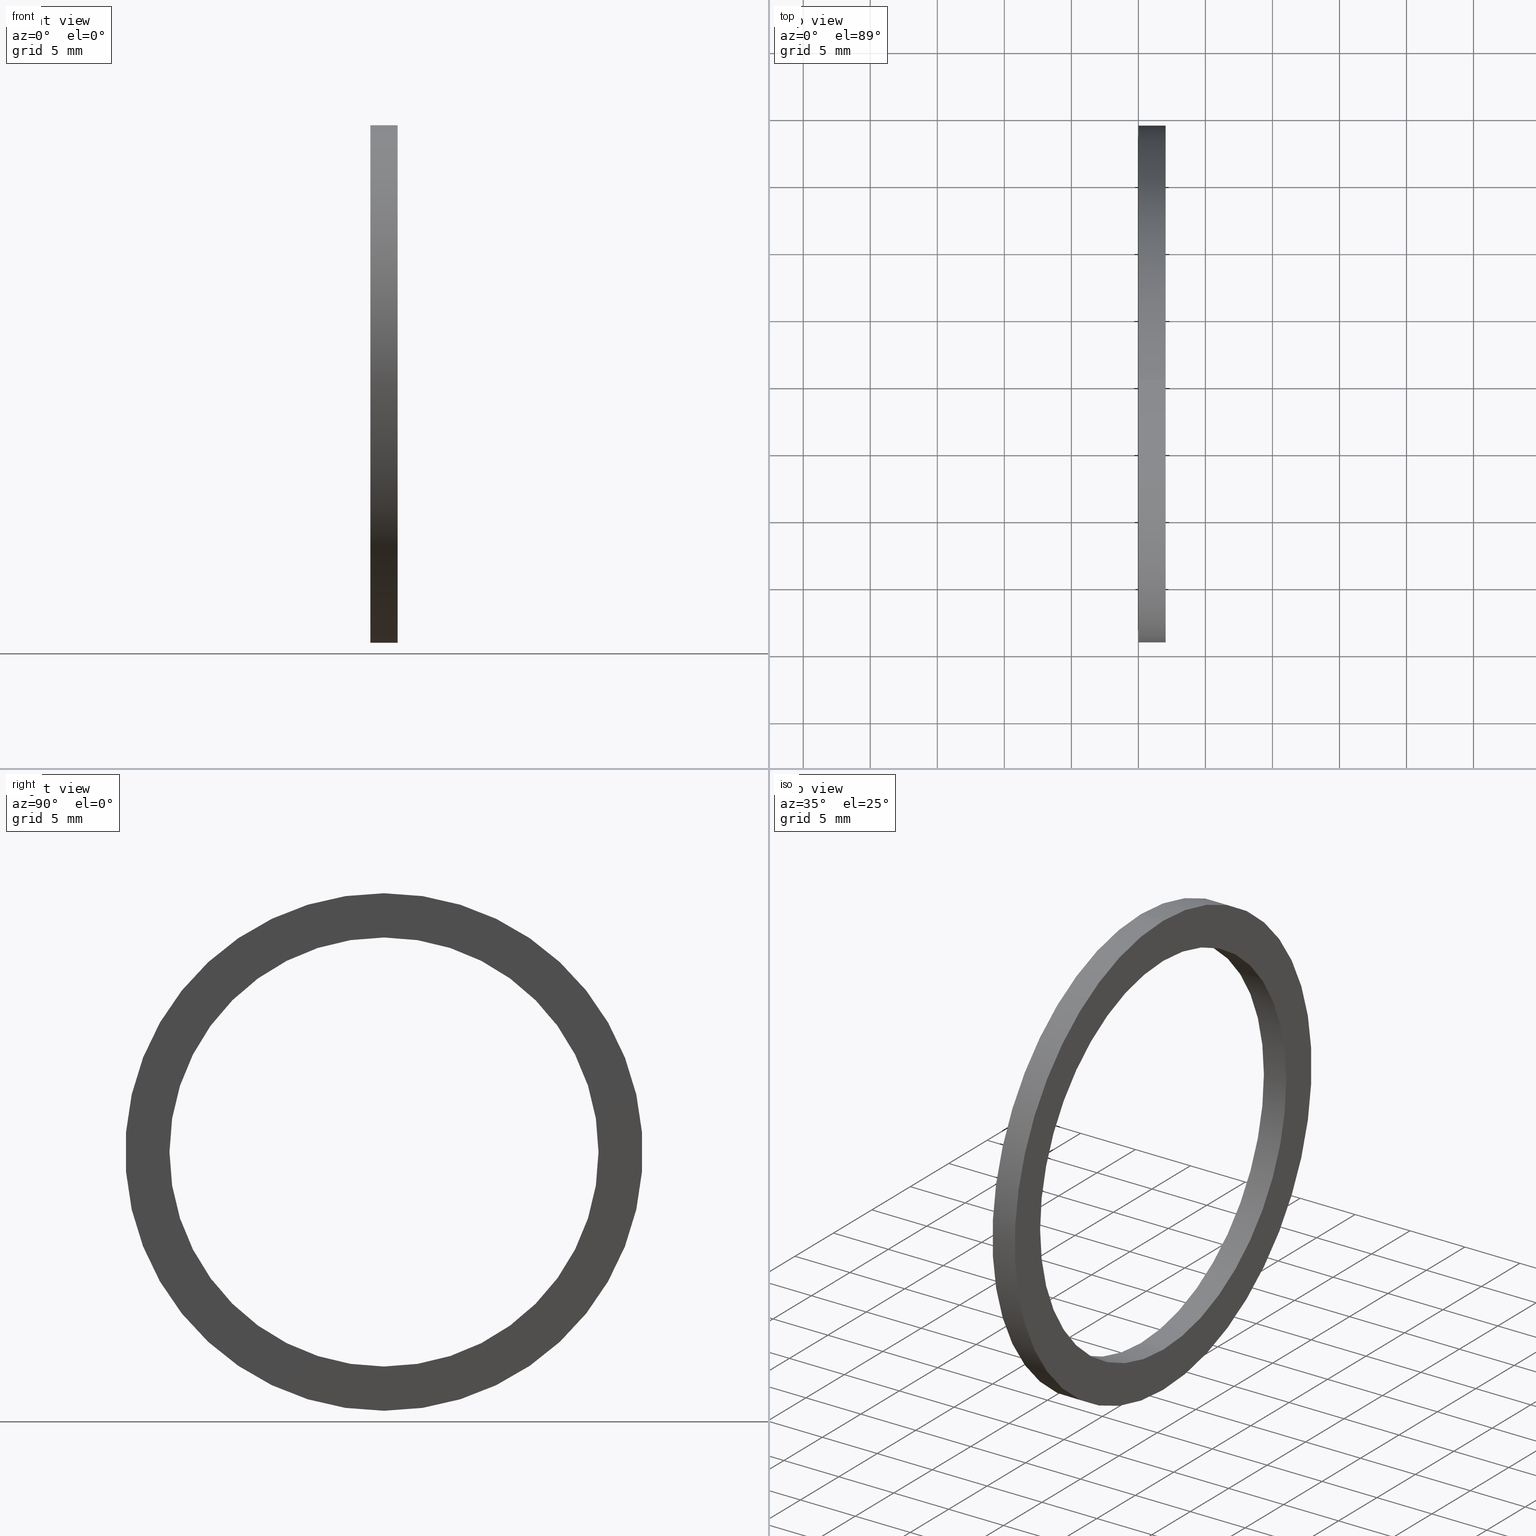
[diagram: canonical four-view strip — front | top / right | iso, engineering-drawing reading convention]
A machine part, canonical four-view strip (front | top / right | iso — engineering-drawing reading convention). The complete STEP part file that produces these views, byte-faithful:
ISO-10303-21;
HEADER;
FILE_DESCRIPTION (( 'STEP AP203' ),
    '1' );
FILE_NAME ('SM-32-VT.STEP',
    '2008-06-25T05:57:08',
    ( 'BSI05' ),
    ( 'BAYSTATE' ),
    'SwSTEP 2.0',
    'SolidWorks 2007',
    '' );
FILE_SCHEMA (( 'CONFIG_CONTROL_DESIGN' ));
ENDSEC;

DATA;
#1 = ORIENTED_EDGE ( 'NONE', *, *, #37, .T. ) ;
#2 = ORIENTED_EDGE ( 'NONE', *, *, #59, .T. ) ;
#3 = ORIENTED_EDGE ( 'NONE', *, *, #22, .F. ) ;
#4 = ORIENTED_EDGE ( 'NONE', *, *, #45, .F. ) ;
#5 = CIRCLE ( 'NONE', #6, 0.7599999999999999000 ) ;
#6 = AXIS2_PLACEMENT_3D ( 'NONE', #7, #8, #9 ) ;
#7 = CARTESIAN_POINT ( 'NONE',  ( 0.07999999999999996000, 0.0000000000000000000, 0.0000000000000000000 ) ) ;
#8 = DIRECTION ( 'NONE',  ( -1.000000000000000000, 0.0000000000000000000, 0.0000000000000000000 ) ) ;
#9 = DIRECTION ( 'NONE',  ( 0.0000000000000000000, 0.0000000000000000000, 1.000000000000000000 ) ) ;
#10 = ORIENTED_EDGE ( 'NONE', *, *, #14, .F. ) ;
#11 = VERTEX_POINT ( 'NONE', #121 ) ;
#12 = EDGE_CURVE ( 'NONE', #11, #43, #107, .T. ) ;
#13 = ADVANCED_FACE ( 'NONE', ( #97, #80 ), #69, .T. ) ;
#14 = EDGE_CURVE ( 'NONE', #32, #11, #84, .T. ) ;
#15 = ORIENTED_EDGE ( 'NONE', *, *, #12, .F. ) ;
#16 = CC_DESIGN_SECURITY_CLASSIFICATION ( #200, ( #240 ) ) ;
#17 = CLOSED_SHELL ( 'NONE', ( #29, #30, #13, #58, #51, #19 ) ) ;
#18 = ORIENTED_EDGE ( 'NONE', *, *, #56, .F. ) ;
#19 = ADVANCED_FACE ( 'NONE', ( #85 ), #70, .F. ) ;
#20 = EDGE_LOOP ( 'NONE', ( #4, #3, #1, #2 ) ) ;
#21 = EDGE_LOOP ( 'NONE', ( #53, #18 ) ) ;
#22 = EDGE_CURVE ( 'NONE', #28, #27, #96, .T. ) ;
#23 = ORIENTED_EDGE ( 'NONE', *, *, #38, .T. ) ;
#24 = ORIENTED_EDGE ( 'NONE', *, *, #25, .T. ) ;
#25 = EDGE_CURVE ( 'NONE', #39, #26, #129, .T. ) ;
#26 = VERTEX_POINT ( 'NONE', #124 ) ;
#27 = VERTEX_POINT ( 'NONE', #123 ) ;
#28 = VERTEX_POINT ( 'NONE', #122 ) ;
#29 = ADVANCED_FACE ( 'NONE', ( #119 ), #118, .F. ) ;
#30 = ADVANCED_FACE ( 'NONE', ( #117 ), #90, .T. ) ;
#31 = EDGE_LOOP ( 'NONE', ( #40, #33, #15, #10 ) ) ;
#32 = VERTEX_POINT ( 'NONE', #89 ) ;
#33 = ORIENTED_EDGE ( 'NONE', *, *, #34, .T. ) ;
#34 = EDGE_CURVE ( 'NONE', #42, #43, #112, .T. ) ;
#35 = ORIENTED_EDGE ( 'NONE', *, *, #38, .F. ) ;
#36 = ORIENTED_EDGE ( 'NONE', *, *, #37, .F. ) ;
#37 = EDGE_CURVE ( 'NONE', #28, #26, #108, .T. ) ;
#38 = EDGE_CURVE ( 'NONE', #27, #28, #102, .T. ) ;
#39 = VERTEX_POINT ( 'NONE', #103 ) ;
#40 = ORIENTED_EDGE ( 'NONE', *, *, #41, .T. ) ;
#41 = EDGE_CURVE ( 'NONE', #32, #42, #148, .T. ) ;
#42 = VERTEX_POINT ( 'NONE', #143 ) ;
#43 = VERTEX_POINT ( 'NONE', #142 ) ;
#44 = ORIENTED_EDGE ( 'NONE', *, *, #45, .T. ) ;
#45 = EDGE_CURVE ( 'NONE', #27, #39, #141, .T. ) ;
#46 = MANIFOLD_SOLID_BREP ( 'NONE', #17 ) ;
#47 = EDGE_LOOP ( 'NONE', ( #35, #44, #24, #36 ) ) ;
#48 = ORIENTED_EDGE ( 'NONE', *, *, #22, .T. ) ;
#49 = ORIENTED_EDGE ( 'NONE', *, *, #63, .F. ) ;
#50 = EDGE_LOOP ( 'NONE', ( #48, #23 ) ) ;
#51 = ADVANCED_FACE ( 'NONE', ( #137, #136 ), #135, .T. ) ;
#52 = ORIENTED_EDGE ( 'NONE', *, *, #14, .T. ) ;
#53 = ORIENTED_EDGE ( 'NONE', *, *, #41, .F. ) ;
#54 = ORIENTED_EDGE ( 'NONE', *, *, #56, .T. ) ;
#55 = ORIENTED_EDGE ( 'NONE', *, *, #34, .F. ) ;
#56 = EDGE_CURVE ( 'NONE', #42, #32, #5, .T. ) ;
#57 = ORIENTED_EDGE ( 'NONE', *, *, #25, .F. ) ;
#58 = ADVANCED_FACE ( 'NONE', ( #207 ), #151, .T. ) ;
#59 = EDGE_CURVE ( 'NONE', #26, #39, #220, .T. ) ;
#60 = ORIENTED_EDGE ( 'NONE', *, *, #59, .F. ) ;
#61 = EDGE_LOOP ( 'NONE', ( #55, #54, #52, #49 ) ) ;
#62 = ORIENTED_EDGE ( 'NONE', *, *, #63, .T. ) ;
#63 = EDGE_CURVE ( 'NONE', #43, #11, #154, .T. ) ;
#64 = EDGE_LOOP ( 'NONE', ( #60, #57 ) ) ;
#65 = ORIENTED_EDGE ( 'NONE', *, *, #12, .T. ) ;
#66 = EDGE_LOOP ( 'NONE', ( #65, #62 ) ) ;
#67 = DIRECTION ( 'NONE',  ( -1.000000000000000000, 0.0000000000000000000, 0.0000000000000000000 ) ) ;
#68 = AXIS2_PLACEMENT_3D ( 'NONE', #74, #73, #72 ) ;
#69 = PLANE ( 'NONE',  #68 ) ;
#70 = CYLINDRICAL_SURFACE ( 'NONE', #71, 0.6300000000000000000 ) ;
#71 = AXIS2_PLACEMENT_3D ( 'NONE', #77, #76, #75 ) ;
#72 = DIRECTION ( 'NONE',  ( 0.0000000000000000000, 0.0000000000000000000, 1.000000000000000000 ) ) ;
#73 = DIRECTION ( 'NONE',  ( -1.000000000000000000, 0.0000000000000000000, 0.0000000000000000000 ) ) ;
#74 = CARTESIAN_POINT ( 'NONE',  ( 2.020600483806921900E-017, -0.6300000000000000000, 0.0000000000000000000 ) ) ;
#75 = DIRECTION ( 'NONE',  ( 0.0000000000000000000, 0.0000000000000000000, 1.000000000000000000 ) ) ;
#76 = DIRECTION ( 'NONE',  ( -1.000000000000000000, 0.0000000000000000000, 0.0000000000000000000 ) ) ;
#77 = CARTESIAN_POINT ( 'NONE',  ( -1.721125226614714300, 0.0000000000000000000, 0.0000000000000000000 ) ) ;
#78 = CARTESIAN_POINT ( 'NONE',  ( 0.0000000000000000000, 0.0000000000000000000, 0.0000000000000000000 ) ) ;
#79 = DIRECTION ( 'NONE',  ( 0.0000000000000000000, 0.0000000000000000000, 1.000000000000000000 ) ) ;
#80 = FACE_BOUND ( 'NONE', #64, .T. ) ;
#81 = DIRECTION ( 'NONE',  ( -1.000000000000000000, 0.0000000000000000000, 0.0000000000000000000 ) ) ;
#82 = VECTOR ( 'NONE', #81, 39.37007874015748100 ) ;
#83 = CARTESIAN_POINT ( 'NONE',  ( -1.721125226614714300, 0.0000000000000000000, 0.7599999999999999000 ) ) ;
#84 = LINE ( 'NONE', #83, #82 ) ;
#85 = FACE_OUTER_BOUND ( 'NONE', #20, .T. ) ;
#86 = DIRECTION ( 'NONE',  ( -1.000000000000000000, 0.0000000000000000000, 0.0000000000000000000 ) ) ;
#87 = CARTESIAN_POINT ( 'NONE',  ( -1.721125226614714300, 0.0000000000000000000, 0.0000000000000000000 ) ) ;
#88 = AXIS2_PLACEMENT_3D ( 'NONE', #87, #86, #113 ) ;
#89 = CARTESIAN_POINT ( 'NONE',  ( 0.07999999999999996000, 0.0000000000000000000, 0.7599999999999999000 ) ) ;
#90 = CYLINDRICAL_SURFACE ( 'NONE', #88, 0.7599999999999999000 ) ;
#91 = DIRECTION ( 'NONE',  ( 0.0000000000000000000, 0.0000000000000000000, 1.000000000000000000 ) ) ;
#92 = DIRECTION ( 'NONE',  ( 0.0000000000000000000, 0.0000000000000000000, 1.000000000000000000 ) ) ;
#93 = DIRECTION ( 'NONE',  ( -1.000000000000000000, 0.0000000000000000000, 0.0000000000000000000 ) ) ;
#94 = CARTESIAN_POINT ( 'NONE',  ( 0.07999999999999996000, 0.0000000000000000000, 0.0000000000000000000 ) ) ;
#95 = AXIS2_PLACEMENT_3D ( 'NONE', #94, #93, #92 ) ;
#96 = CIRCLE ( 'NONE', #95, 0.6300000000000000000 ) ;
#97 = FACE_OUTER_BOUND ( 'NONE', #66, .T. ) ;
#98 = DIRECTION ( 'NONE',  ( 0.0000000000000000000, 0.0000000000000000000, 1.000000000000000000 ) ) ;
#99 = DIRECTION ( 'NONE',  ( -1.000000000000000000, 0.0000000000000000000, 0.0000000000000000000 ) ) ;
#100 = CARTESIAN_POINT ( 'NONE',  ( 0.07999999999999996000, 0.0000000000000000000, 0.0000000000000000000 ) ) ;
#101 = AXIS2_PLACEMENT_3D ( 'NONE', #100, #99, #98 ) ;
#102 = CIRCLE ( 'NONE', #101, 0.6300000000000000000 ) ;
#103 = CARTESIAN_POINT ( 'NONE',  ( 0.0000000000000000000, 7.715274834628325400E-017, -0.6300000000000000000 ) ) ;
#104 = DIRECTION ( 'NONE',  ( -1.000000000000000000, 0.0000000000000000000, 0.0000000000000000000 ) ) ;
#105 = VECTOR ( 'NONE', #104, 39.37007874015748100 ) ;
#106 = CARTESIAN_POINT ( 'NONE',  ( -1.721125226614714300, 0.0000000000000000000, 0.6300000000000000000 ) ) ;
#107 = CIRCLE ( 'NONE', #120, 0.7599999999999999000 ) ;
#108 = LINE ( 'NONE', #106, #105 ) ;
#109 = DIRECTION ( 'NONE',  ( -1.000000000000000000, 0.0000000000000000000, 0.0000000000000000000 ) ) ;
#110 = VECTOR ( 'NONE', #109, 39.37007874015748100 ) ;
#111 = CARTESIAN_POINT ( 'NONE',  ( -1.721125226614714300, 9.307315673519883500E-017, -0.7599999999999999000 ) ) ;
#112 = LINE ( 'NONE', #111, #110 ) ;
#113 = DIRECTION ( 'NONE',  ( 0.0000000000000000000, 0.0000000000000000000, 1.000000000000000000 ) ) ;
#114 = DIRECTION ( 'NONE',  ( -1.000000000000000000, 0.0000000000000000000, 0.0000000000000000000 ) ) ;
#115 = CARTESIAN_POINT ( 'NONE',  ( -1.721125226614714300, 0.0000000000000000000, 0.0000000000000000000 ) ) ;
#116 = AXIS2_PLACEMENT_3D ( 'NONE', #115, #114, #91 ) ;
#117 = FACE_OUTER_BOUND ( 'NONE', #31, .T. ) ;
#118 = CYLINDRICAL_SURFACE ( 'NONE', #116, 0.6300000000000000000 ) ;
#119 = FACE_OUTER_BOUND ( 'NONE', #47, .T. ) ;
#120 = AXIS2_PLACEMENT_3D ( 'NONE', #78, #67, #79 ) ;
#121 = CARTESIAN_POINT ( 'NONE',  ( 0.0000000000000000000, 0.0000000000000000000, 0.7599999999999999000 ) ) ;
#122 = CARTESIAN_POINT ( 'NONE',  ( 0.07999999999999996000, 0.0000000000000000000, 0.6300000000000000000 ) ) ;
#123 = CARTESIAN_POINT ( 'NONE',  ( 0.07999999999999996000, 7.715274834628325400E-017, -0.6300000000000000000 ) ) ;
#124 = CARTESIAN_POINT ( 'NONE',  ( 0.0000000000000000000, 0.0000000000000000000, 0.6300000000000000000 ) ) ;
#125 = DIRECTION ( 'NONE',  ( 0.0000000000000000000, 0.0000000000000000000, 1.000000000000000000 ) ) ;
#126 = DIRECTION ( 'NONE',  ( -1.000000000000000000, 0.0000000000000000000, 0.0000000000000000000 ) ) ;
#127 = CARTESIAN_POINT ( 'NONE',  ( 0.0000000000000000000, 0.0000000000000000000, 0.0000000000000000000 ) ) ;
#128 = AXIS2_PLACEMENT_3D ( 'NONE', #127, #126, #125 ) ;
#129 = CIRCLE ( 'NONE', #128, 0.6300000000000000000 ) ;
#130 = PRODUCT_RELATED_PRODUCT_CATEGORY ( 'detail', '', ( #247 ) ) ;
#131 = DIRECTION ( 'NONE',  ( 0.0000000000000000000, 0.0000000000000000000, -1.000000000000000000 ) ) ;
#132 = DIRECTION ( 'NONE',  ( 1.000000000000000000, 0.0000000000000000000, 0.0000000000000000000 ) ) ;
#133 = CARTESIAN_POINT ( 'NONE',  ( 0.08000000000000002900, -0.6300000000000000000, 0.0000000000000000000 ) ) ;
#134 = AXIS2_PLACEMENT_3D ( 'NONE', #133, #132, #131 ) ;
#135 = PLANE ( 'NONE',  #134 ) ;
#136 = FACE_OUTER_BOUND ( 'NONE', #21, .T. ) ;
#137 = FACE_BOUND ( 'NONE', #50, .T. ) ;
#138 = DIRECTION ( 'NONE',  ( -1.000000000000000000, 0.0000000000000000000, 0.0000000000000000000 ) ) ;
#139 = VECTOR ( 'NONE', #138, 39.37007874015748100 ) ;
#140 = CARTESIAN_POINT ( 'NONE',  ( -1.721125226614714300, 7.715274834628325400E-017, -0.6300000000000000000 ) ) ;
#141 = LINE ( 'NONE', #140, #139 ) ;
#142 = CARTESIAN_POINT ( 'NONE',  ( 0.0000000000000000000, 9.307315673519883500E-017, -0.7599999999999999000 ) ) ;
#143 = CARTESIAN_POINT ( 'NONE',  ( 0.07999999999999996000, 9.307315673519883500E-017, -0.7599999999999999000 ) ) ;
#144 = DIRECTION ( 'NONE',  ( 0.0000000000000000000, 0.0000000000000000000, 1.000000000000000000 ) ) ;
#145 = DIRECTION ( 'NONE',  ( -1.000000000000000000, 0.0000000000000000000, 0.0000000000000000000 ) ) ;
#146 = CARTESIAN_POINT ( 'NONE',  ( 0.07999999999999996000, 0.0000000000000000000, 0.0000000000000000000 ) ) ;
#147 = AXIS2_PLACEMENT_3D ( 'NONE', #146, #145, #144 ) ;
#148 = CIRCLE ( 'NONE', #147, 0.7599999999999999000 ) ;
#149 = CARTESIAN_POINT ( 'NONE',  ( 0.0000000000000000000, 0.0000000000000000000, 0.0000000000000000000 ) ) ;
#150 = ADVANCED_BREP_SHAPE_REPRESENTATION ( 'SM-32-VT', ( #46, #178 ), #179 ) ;
#151 = CYLINDRICAL_SURFACE ( 'NONE', #206, 0.7599999999999999000 ) ;
#152 =( CONVERSION_BASED_UNIT ( 'INCH', #209 ) LENGTH_UNIT ( ) NAMED_UNIT ( #241 ) );
#153 = AXIS2_PLACEMENT_3D ( 'NONE', #205, #204, #203 ) ;
#154 = CIRCLE ( 'NONE', #153, 0.7599999999999999000 ) ;
#155 = APPROVAL_DATE_TIME ( #156, #162 ) ;
#156 = DATE_AND_TIME ( #157, #158 ) ;
#157 = CALENDAR_DATE ( 2008, 25, 6 ) ;
#158 = LOCAL_TIME ( 11, 27, 8.000000000000000000, #159 ) ;
#159 = COORDINATED_UNIVERSAL_TIME_OFFSET ( 5, 30, .AHEAD. ) ;
#160 = APPROVAL_PERSON_ORGANIZATION ( #164, #162, #161 ) ;
#161 = APPROVAL_ROLE ( '' ) ;
#162 = APPROVAL ( #163, 'UNSPECIFIED' ) ;
#163 = APPROVAL_STATUS ( 'not_yet_approved' ) ;
#164 = PERSON_AND_ORGANIZATION ( #246, #174 ) ;
#165 = PRODUCT_DEFINITION ( 'UNKNOWN', '', #240, #166 ) ;
#166 = DESIGN_CONTEXT ( 'detailed design', #168, 'design' ) ;
#167 = APPLICATION_PROTOCOL_DEFINITION ( 'international standard', 'config_control_design', 1994, #168 ) ;
#168 = APPLICATION_CONTEXT ( 'configuration controlled 3d designs of mechanical parts and assemblies' ) ;
#169 = CC_DESIGN_PERSON_AND_ORGANIZATION_ASSIGNMENT ( #173, #172, ( #247 ) ) ;
#170 =( NAMED_UNIT ( * ) PLANE_ANGLE_UNIT ( ) SI_UNIT ( $, .RADIAN. ) );
#171 = DIRECTION ( 'NONE',  ( 0.0000000000000000000, 0.0000000000000000000, 1.000000000000000000 ) ) ;
#172 = PERSON_AND_ORGANIZATION_ROLE ( 'design_owner' ) ;
#173 = PERSON_AND_ORGANIZATION ( #246, #174 ) ;
#174 = ORGANIZATION ( 'UNSPECIFIED', 'UNSPECIFIED', '' ) ;
#175 = DIRECTION ( 'NONE',  ( -1.000000000000000000, 0.0000000000000000000, 0.0000000000000000000 ) ) ;
#176 = CARTESIAN_POINT ( 'NONE',  ( 0.0000000000000000000, 0.0000000000000000000, 0.0000000000000000000 ) ) ;
#177 = DIRECTION ( 'NONE',  ( -1.000000000000000000, 0.0000000000000000000, 0.0000000000000000000 ) ) ;
#178 = AXIS2_PLACEMENT_3D ( 'NONE', #149, #245, #244 ) ;
#179 =( GEOMETRIC_REPRESENTATION_CONTEXT ( 3 ) GLOBAL_UNCERTAINTY_ASSIGNED_CONTEXT ( ( #221 ) ) GLOBAL_UNIT_ASSIGNED_CONTEXT ( ( #152, #170, #222 ) ) REPRESENTATION_CONTEXT ( 'NONE', 'WORKASPACE' ) );
#180 = CC_DESIGN_APPROVAL ( #188, ( #200 ) ) ;
#181 = APPROVAL_DATE_TIME ( #182, #188 ) ;
#182 = DATE_AND_TIME ( #183, #184 ) ;
#183 = CALENDAR_DATE ( 2008, 25, 6 ) ;
#184 = LOCAL_TIME ( 11, 27, 8.000000000000000000, #185 ) ;
#185 = COORDINATED_UNIVERSAL_TIME_OFFSET ( 5, 30, .AHEAD. ) ;
#186 = APPROVAL_PERSON_ORGANIZATION ( #190, #188, #187 ) ;
#187 = APPROVAL_ROLE ( '' ) ;
#188 = APPROVAL ( #189, 'UNSPECIFIED' ) ;
#189 = APPROVAL_STATUS ( 'not_yet_approved' ) ;
#190 = PERSON_AND_ORGANIZATION ( #246, #174 ) ;
#191 = CC_DESIGN_DATE_AND_TIME_ASSIGNMENT ( #193, #192, ( #200 ) ) ;
#192 = DATE_TIME_ROLE ( 'classification_date' ) ;
#193 = DATE_AND_TIME ( #194, #195 ) ;
#194 = CALENDAR_DATE ( 2008, 25, 6 ) ;
#195 = LOCAL_TIME ( 11, 27, 8.000000000000000000, #196 ) ;
#196 = COORDINATED_UNIVERSAL_TIME_OFFSET ( 5, 30, .AHEAD. ) ;
#197 = CC_DESIGN_PERSON_AND_ORGANIZATION_ASSIGNMENT ( #199, #198, ( #200 ) ) ;
#198 = PERSON_AND_ORGANIZATION_ROLE ( 'classification_officer' ) ;
#199 = PERSON_AND_ORGANIZATION ( #246, #174 ) ;
#200 = SECURITY_CLASSIFICATION ( '', '', #201 ) ;
#201 = SECURITY_CLASSIFICATION_LEVEL ( 'unclassified' ) ;
#202 = CC_DESIGN_PERSON_AND_ORGANIZATION_ASSIGNMENT ( #225, #224, ( #240 ) ) ;
#203 = DIRECTION ( 'NONE',  ( 0.0000000000000000000, 0.0000000000000000000, 1.000000000000000000 ) ) ;
#204 = DIRECTION ( 'NONE',  ( -1.000000000000000000, 0.0000000000000000000, 0.0000000000000000000 ) ) ;
#205 = CARTESIAN_POINT ( 'NONE',  ( 0.0000000000000000000, 0.0000000000000000000, 0.0000000000000000000 ) ) ;
#206 = AXIS2_PLACEMENT_3D ( 'NONE', #242, #177, #208 ) ;
#207 = FACE_OUTER_BOUND ( 'NONE', #61, .T. ) ;
#208 = DIRECTION ( 'NONE',  ( 0.0000000000000000000, 0.0000000000000000000, 1.000000000000000000 ) ) ;
#209 = LENGTH_MEASURE_WITH_UNIT ( LENGTH_MEASURE( 0.02539999999999999900 ), #243 );
#210 = CC_DESIGN_DATE_AND_TIME_ASSIGNMENT ( #212, #211, ( #165 ) ) ;
#211 = DATE_TIME_ROLE ( 'creation_date' ) ;
#212 = DATE_AND_TIME ( #213, #214 ) ;
#213 = CALENDAR_DATE ( 2008, 25, 6 ) ;
#214 = LOCAL_TIME ( 11, 27, 8.000000000000000000, #215 ) ;
#215 = COORDINATED_UNIVERSAL_TIME_OFFSET ( 5, 30, .AHEAD. ) ;
#216 = CC_DESIGN_PERSON_AND_ORGANIZATION_ASSIGNMENT ( #218, #217, ( #165 ) ) ;
#217 = PERSON_AND_ORGANIZATION_ROLE ( 'creator' ) ;
#218 = PERSON_AND_ORGANIZATION ( #246, #174 ) ;
#219 = CC_DESIGN_APPROVAL ( #162, ( #165 ) ) ;
#220 = CIRCLE ( 'NONE', #223, 0.6300000000000000000 ) ;
#221 = UNCERTAINTY_MEASURE_WITH_UNIT (LENGTH_MEASURE( 1.000000000000000100E-005 ), #152, 'distance_accuracy_value', 'NONE');
#222 =( NAMED_UNIT ( * ) SI_UNIT ( $, .STERADIAN. ) SOLID_ANGLE_UNIT ( ) );
#223 = AXIS2_PLACEMENT_3D ( 'NONE', #176, #175, #171 ) ;
#224 = PERSON_AND_ORGANIZATION_ROLE ( 'design_supplier' ) ;
#225 = PERSON_AND_ORGANIZATION ( #246, #174 ) ;
#226 = CC_DESIGN_PERSON_AND_ORGANIZATION_ASSIGNMENT ( #228, #227, ( #240 ) ) ;
#227 = PERSON_AND_ORGANIZATION_ROLE ( 'creator' ) ;
#228 = PERSON_AND_ORGANIZATION ( #246, #174 ) ;
#229 = CC_DESIGN_APPROVAL ( #237, ( #240 ) ) ;
#230 = APPROVAL_DATE_TIME ( #231, #237 ) ;
#231 = DATE_AND_TIME ( #232, #233 ) ;
#232 = CALENDAR_DATE ( 2008, 25, 6 ) ;
#233 = LOCAL_TIME ( 11, 27, 8.000000000000000000, #234 ) ;
#234 = COORDINATED_UNIVERSAL_TIME_OFFSET ( 5, 30, .AHEAD. ) ;
#235 = APPROVAL_PERSON_ORGANIZATION ( #239, #237, #236 ) ;
#236 = APPROVAL_ROLE ( '' ) ;
#237 = APPROVAL ( #238, 'UNSPECIFIED' ) ;
#238 = APPROVAL_STATUS ( 'not_yet_approved' ) ;
#239 = PERSON_AND_ORGANIZATION ( #246, #174 ) ;
#240 = PRODUCT_DEFINITION_FORMATION_WITH_SPECIFIED_SOURCE ( 'ANY', '', #247, .NOT_KNOWN. ) ;
#241 = DIMENSIONAL_EXPONENTS ( 1.000000000000000000, 0.0000000000000000000, 0.0000000000000000000, 0.0000000000000000000, 0.0000000000000000000, 0.0000000000000000000, 0.0000000000000000000 ) ;
#242 = CARTESIAN_POINT ( 'NONE',  ( -1.721125226614714300, 0.0000000000000000000, 0.0000000000000000000 ) ) ;
#243 =( LENGTH_UNIT ( ) NAMED_UNIT ( * ) SI_UNIT ( $, .METRE. ) );
#244 = DIRECTION ( 'NONE',  ( 1.000000000000000000, 0.0000000000000000000, 0.0000000000000000000 ) ) ;
#245 = DIRECTION ( 'NONE',  ( 0.0000000000000000000, 0.0000000000000000000, 1.000000000000000000 ) ) ;
#246 = PERSON ( 'UNSPECIFIED', 'UNSPECIFIED', 'UNSPECIFIED', ('UNSPECIFIED'), ('UNSPECIFIED'), ('UNSPECIFIED') ) ;
#247 = PRODUCT ( 'SM-32-VT', 'SM-32-VT', '', ( #248 ) ) ;
#248 = MECHANICAL_CONTEXT ( 'NONE', #250, 'mechanical' ) ;
#249 = APPLICATION_PROTOCOL_DEFINITION ( 'international standard', 'config_control_design', 1994, #250 ) ;
#250 = APPLICATION_CONTEXT ( 'configuration controlled 3d designs of mechanical parts and assemblies' ) ;
#251 = PRODUCT_DEFINITION_SHAPE ( 'NONE', 'NONE',  #165 ) ;
#252 = SHAPE_DEFINITION_REPRESENTATION ( #251, #150 ) ;
ENDSEC;
END-ISO-10303-21;
